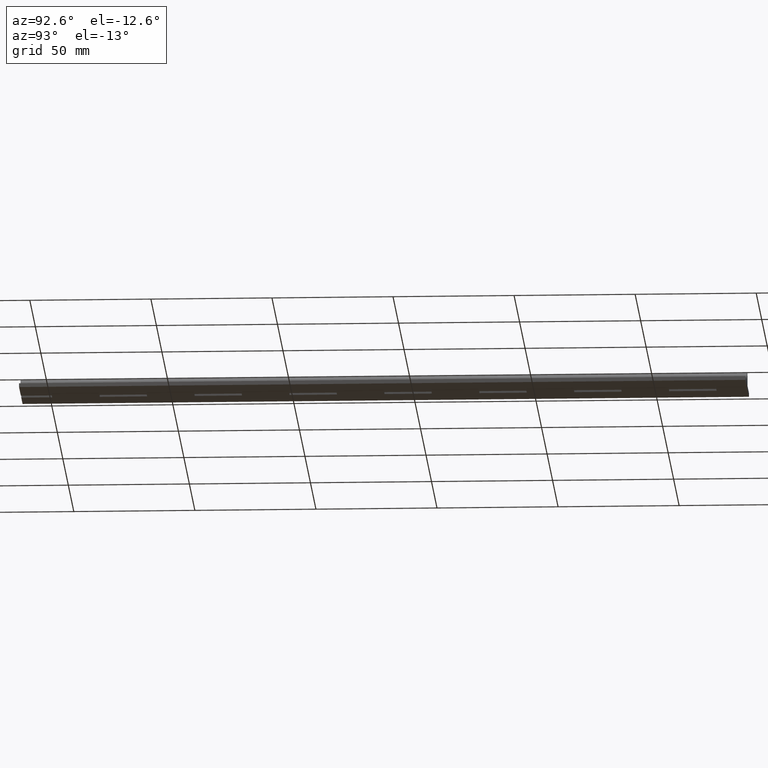
[diagram: clean part render]
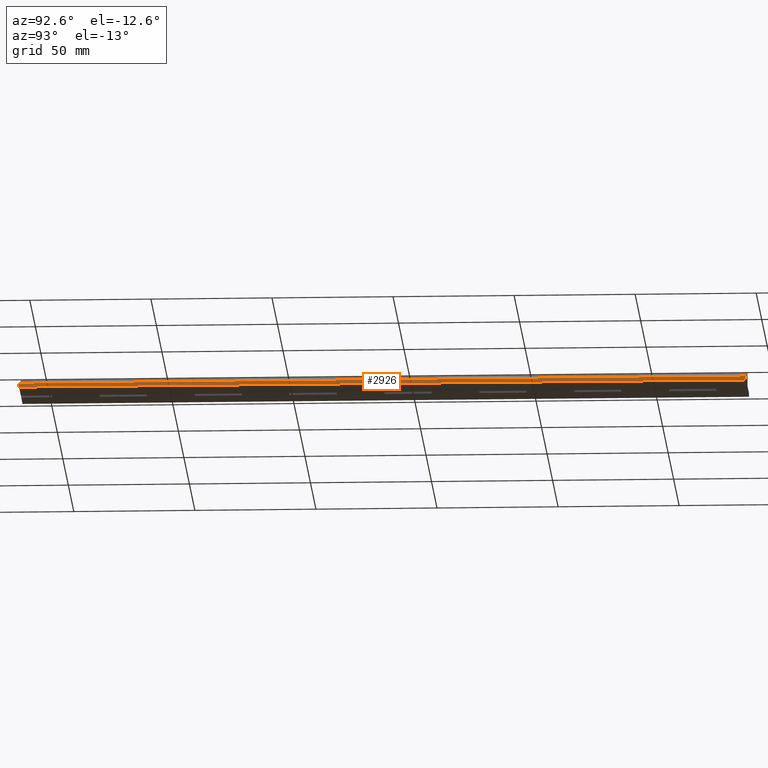
[diagram: same view with one face highlighted and labeled with its STEP entity id]
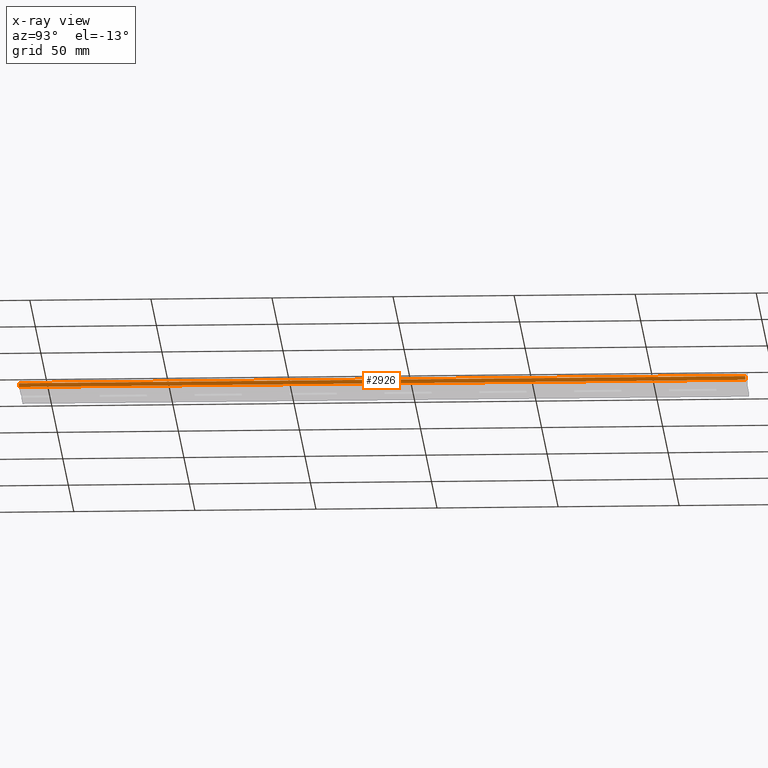
[diagram: x-ray of the same camera — body ghosted, the highlighted face saturated]
A machine part, auxiliary view. The second image highlights one B-rep face of the part: STEP entity #2926.
The next image is the same camera in x-ray: the body ghosted, the highlighted face saturated — about 0% of this face is hidden behind the body in this view.
In plain terms, the highlighted planar face has unit normal (-1, 0, 0).
Its self-contained STEP definition (entity closure, byte-faithful):
#25 = EDGE_CURVE ( 'NONE', #2324, #3406, #3261, .T. ) ;
#56 = CARTESIAN_POINT ( 'NONE',  ( 16.00000000000000000, 274.3999999999999800, -1.750002187502757400 ) ) ;
#116 = CARTESIAN_POINT ( 'NONE',  ( 16.00000000000000000, 287.1999999999999300, -1.750002187502757400 ) ) ;
#264 = VECTOR ( 'NONE', #1587, 1000.000000000000000 ) ;
#276 = CARTESIAN_POINT ( 'NONE',  ( 16.00000000000000000, 274.3999999999999800, -3.350002187502757700 ) ) ;
#347 = DIRECTION ( 'NONE',  ( -1.000000000000000000, 0.0000000000000000000, 0.0000000000000000000 ) ) ;
#361 = ORIENTED_EDGE ( 'NONE', *, *, #25, .F. ) ;
#428 = AXIS2_PLACEMENT_3D ( 'NONE', #56, #347, #2335 ) ;
#450 = ORIENTED_EDGE ( 'NONE', *, *, #680, .F. ) ;
#680 = EDGE_CURVE ( 'NONE', #3406, #1159, #1785, .T. ) ;
#682 = CARTESIAN_POINT ( 'NONE',  ( 16.00000000000000000, 287.1999999999999300, -3.350002187502757700 ) ) ;
#683 = LINE ( 'NONE', #2185, #2006 ) ;
#785 = EDGE_LOOP ( 'NONE', ( #1291, #1959, #450, #361 ) ) ;
#974 = VERTEX_POINT ( 'NONE', #1104 ) ;
#1104 = CARTESIAN_POINT ( 'NONE',  ( 16.00000000000000000, -12.80000000000000100, -1.750002187502757400 ) ) ;
#1159 = VERTEX_POINT ( 'NONE', #2660 ) ;
#1173 = VECTOR ( 'NONE', #2275, 1000.000000000000000 ) ;
#1291 = ORIENTED_EDGE ( 'NONE', *, *, #2446, .T. ) ;
#1587 = DIRECTION ( 'NONE',  ( -0.0000000000000000000, -1.000000000000000000, -0.0000000000000000000 ) ) ;
#1744 = VECTOR ( 'NONE', #3018, 1000.000000000000000 ) ;
#1785 = LINE ( 'NONE', #276, #264 ) ;
#1925 = LINE ( 'NONE', #2494, #1173 ) ;
#1959 = ORIENTED_EDGE ( 'NONE', *, *, #1991, .F. ) ;
#1991 = EDGE_CURVE ( 'NONE', #1159, #974, #1925, .T. ) ;
#2006 = VECTOR ( 'NONE', #3146, 1000.000000000000000 ) ;
#2185 = CARTESIAN_POINT ( 'NONE',  ( 16.00000000000000000, 274.3999999999999800, -1.750002187502757400 ) ) ;
#2275 = DIRECTION ( 'NONE',  ( 0.0000000000000000000, 0.0000000000000000000, 1.000000000000000000 ) ) ;
#2319 = PLANE ( 'NONE',  #428 ) ;
#2324 = VERTEX_POINT ( 'NONE', #3131 ) ;
#2335 = DIRECTION ( 'NONE',  ( 0.0000000000000000000, 0.0000000000000000000, 1.000000000000000000 ) ) ;
#2446 = EDGE_CURVE ( 'NONE', #2324, #974, #683, .T. ) ;
#2494 = CARTESIAN_POINT ( 'NONE',  ( 16.00000000000000000, -12.80000000000000100, -3.350002187502757700 ) ) ;
#2660 = CARTESIAN_POINT ( 'NONE',  ( 16.00000000000000000, -12.80000000000000100, -3.350002187502757700 ) ) ;
#2926 = ADVANCED_FACE ( 'NONE', ( #3227 ), #2319, .F. ) ;
#3018 = DIRECTION ( 'NONE',  ( 0.0000000000000000000, 0.0000000000000000000, -1.000000000000000000 ) ) ;
#3131 = CARTESIAN_POINT ( 'NONE',  ( 16.00000000000000000, 287.1999999999999300, -1.750002187502757400 ) ) ;
#3146 = DIRECTION ( 'NONE',  ( -0.0000000000000000000, -1.000000000000000000, -0.0000000000000000000 ) ) ;
#3227 = FACE_OUTER_BOUND ( 'NONE', #785, .T. ) ;
#3261 = LINE ( 'NONE', #116, #1744 ) ;
#3406 = VERTEX_POINT ( 'NONE', #682 ) ;